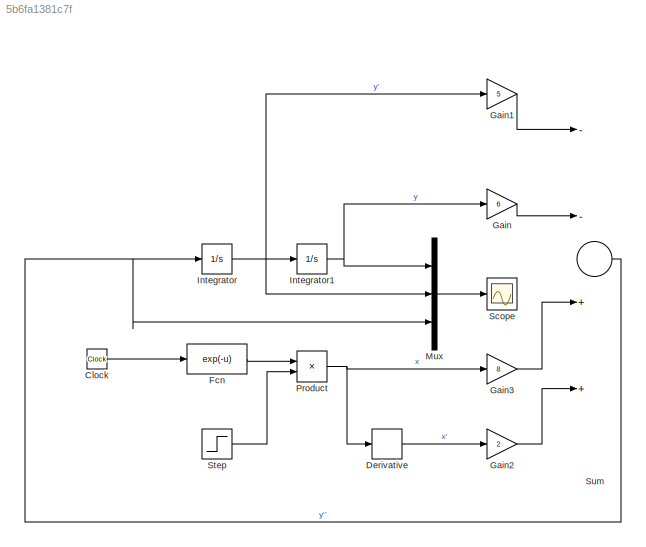
MODEL slx_5b6fa1381c7f
KIND model
CONFIG AbsTol = auto
CONFIG FixedStep = auto
CONFIG MaxStep = auto
CONFIG MinStep = auto
CONFIG RelTol = 1e-3
CONFIG SampleTimeConstraint = Unconstrained
CONFIG Solver = VariableStepAuto
CONFIG SolverMode = Auto
CONFIG SolverName = VariableStepAuto
CONFIG StartFcn = open_scope
CONFIG StartTime = 0.0
CONFIG StopTime = 10.0
BLOCK [Clock] Clock
BLOCK [Derivative] Derivative
BLOCK [Fcn] Fcn
  Expr = exp(-u)
BLOCK [Gain] Gain
  Gain = 6
  OutDataTypeStr = Inherit: Inherit via internal rule
  ParamDataTypeStr = Inherit: Inherit via internal rule
  SaturateOnIntegerOverflow = off
BLOCK [Gain] Gain1
  Gain = 5
  OutDataTypeStr = Inherit: Inherit via internal rule
  ParamDataTypeStr = Inherit: Inherit via internal rule
  SaturateOnIntegerOverflow = off
BLOCK [Gain] Gain2
  Gain = 2
  OutDataTypeStr = Inherit: Inherit via internal rule
  ParamDataTypeStr = Inherit: Inherit via internal rule
  SaturateOnIntegerOverflow = off
BLOCK [Gain] Gain3
  Gain = 8
  OutDataTypeStr = Inherit: Inherit via internal rule
  ParamDataTypeStr = Inherit: Inherit via internal rule
  SaturateOnIntegerOverflow = off
BLOCK [Integrator] Integrator
  AttributesFormatString = InitVal=%<InitialCondition>
  InitialCondition = -4
  Ports = [1, 1]
BLOCK [Integrator] Integrator1
  AttributesFormatString = InitVal=%<InitialCondition>
  InitialCondition = 5
  Ports = [1, 1]
BLOCK [Mux] Mux
  DisplayOption = bar
  Inputs = 3
  Ports = [3, 1]
BLOCK [Product] Product
  InputSameDT = off
  OutDataTypeStr = Inherit: Inherit via internal rule
  Ports = [2, 1]
  RndMeth = Floor
  SaturateOnIntegerOverflow = off
BLOCK [Scope] Scope
  Ports = [1]
  ScopeSpecificationString = Simulink.scopes.TimeScopeBlockCfg('CurrentConfiguration', extmgr.ConfigurationSet(extmgr.Configuration('Core','General UI',true),extmgr.Configuration('Core','Source UI',true),extmgr.Configuration('Sources','WiredSimulink',true),extmgr.Configuration('Visuals','Time Domain',true,'SerializedDisplays',{struct('MinYLimReal','-12943607142019.633','MaxYLimReal','116492464278076.72','YLabelReal','','MinYL...<+1423ch>
BLOCK [Step] Step
  SampleTime = 0
BLOCK [Sum] Sum
  InputSameDT = off
  Inputs = --++
  OutDataTypeStr = Inherit: Inherit via internal rule
  Ports = [4, 1]
  SaturateOnIntegerOverflow = off
LINE Clock:1 -> Fcn:1
LINE Derivative:1 -> Gain2:1
LINE Fcn:1 -> Product:1
LINE Gain1:1 -> Sum:1
LINE Gain2:1 -> Sum:4
LINE Gain3:1 -> Sum:3
LINE Gain:1 -> Sum:2
NET Integrator1:1 -> Gain:1, Mux:1
NET Integrator:1 -> Gain1:1, Integrator1:1, Mux:2
LINE Mux:1 -> Scope:1
NET Product:1 -> Derivative:1, Gain3:1
LINE Step:1 -> Product:2
NET Sum:1 -> Integrator:1, Mux:3
note: NET lines group one-source signal fan-out (src -> all destinations, sorted); 1:1 wires keep LINE
